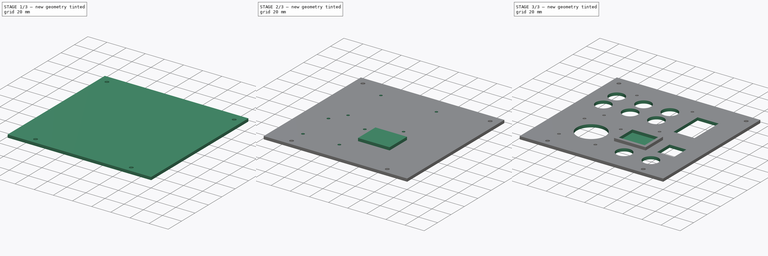
[diagram: build sequence overview — one tinted view per stage of 3, left to right]
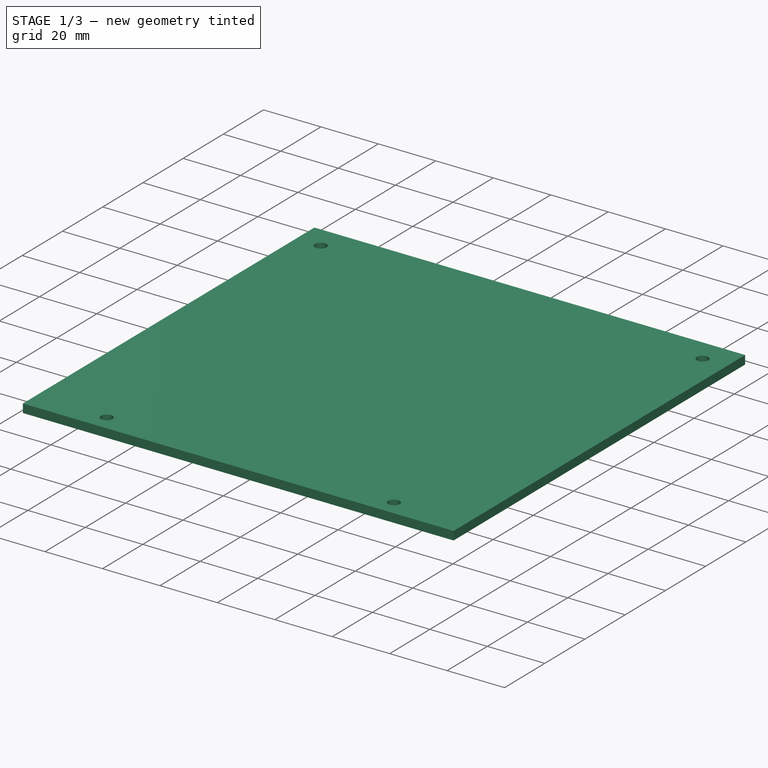
[diagram: stage 1 of 3 — iso view after this stage's code; geometry added in this stage tinted green]
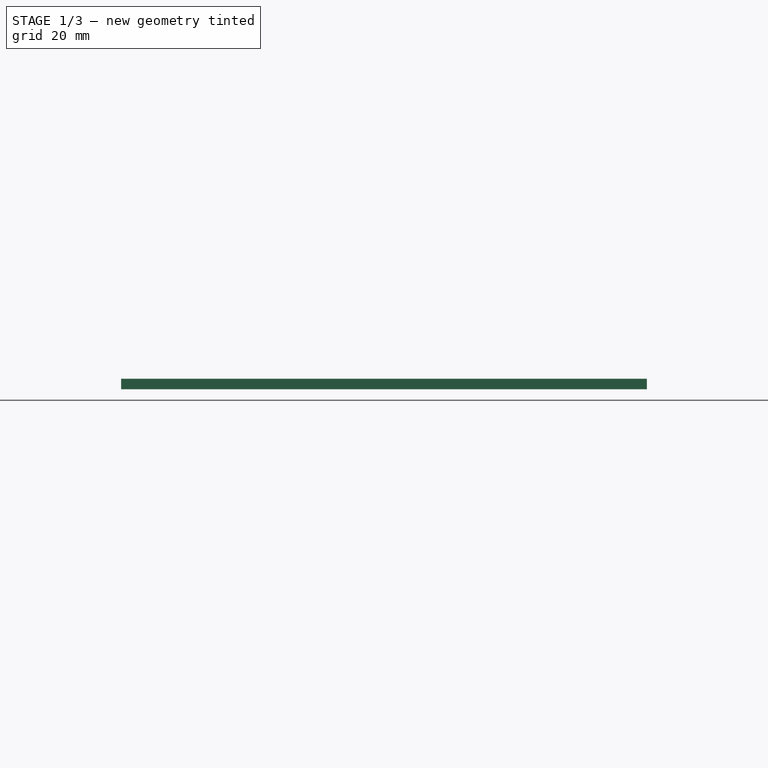
[diagram: stage 1 of 3 — front view after this stage's code; geometry added in this stage tinted green]
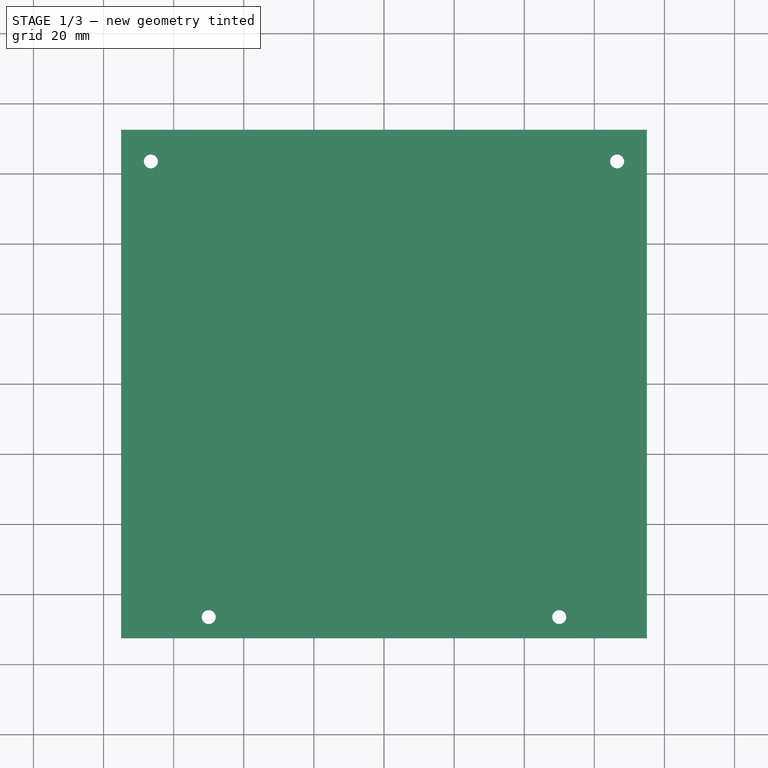
[diagram: stage 1 of 3 — top view after this stage's code; geometry added in this stage tinted green]
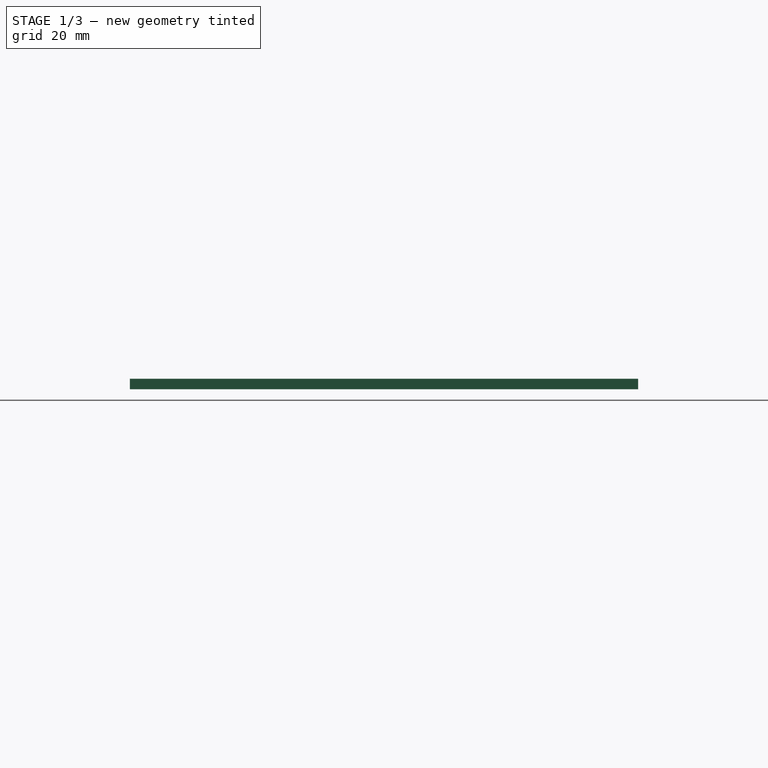
[diagram: stage 1 of 3 — right view after this stage's code; geometry added in this stage tinted green]
FCSTD DOCUMENT  (FreeCAD 0.18R4 (GitTag))
Label: RaspberryPiBase
License: All rights reserved
LicenseURL: http://en.wikipedia.org/wiki/All_rights_reserved
objects: Sketcher::SketchObject×7, PartDesign::Pocket×5, PartDesign::Pad×2, PartDesign::Body×1
note: 22 computed .brp shape members not serialized (recipe doc carries the construction recipe); baked Part::Feature solids carry a one-line shape summary decoded from their .brp

FEATURE [Sketcher::SketchObject] Sketch  label="Outline"
  MapMode = 5
  Support = -> [XY_Plane]
  sketch-geometry (4):
    g0: LineSegment StartX=-75 StartY=72.5 StartZ=0 EndX=75 EndY=72.5 EndZ=0
    g1: LineSegment StartX=75 StartY=72.5 StartZ=0 EndX=75 EndY=-72.5 EndZ=0
    g2: LineSegment StartX=75 StartY=-72.5 StartZ=0 EndX=-75 EndY=-72.5 EndZ=0
    g3: LineSegment StartX=-75 StartY=-72.5 StartZ=0 EndX=-75 EndY=72.5 EndZ=0
  constraints (10):
    c: Coincident(g0,g1)
    c: Coincident(g1,g2)
    c: Coincident(g2,g3)
    c: Coincident(g3,g0)
    c: Horizontal(g2)
    c: Vertical(g3)
    c: Symmetric(g0,g0,g-2)
    c: Symmetric(g0,g1,g-1)
    c: DistanceY(g1,g1) = 145
    c: DistanceX(g0,g0) = 150
FEATURE [PartDesign::Pad] Pad
  Length = 3
  Length2 = 100
  Profile = -> Sketch
  Type = 0
FEATURE [Sketcher::SketchObject] Sketch001  label="mountholes"
  ExternalGeometry = -> [Pad]
  MapMode = 5
  Placement = pos=(0,0,3) rot=(0,0,1;0rad)
  Support = -> [Pad]
  sketch-geometry (4):
    g0: Circle CenterX=-50 CenterY=-66.5 CenterZ=0 NormalX=0 NormalY=0 NormalZ=1 AngleXU=0 Radius=2
    g1: Circle CenterX=50 CenterY=-66.5 CenterZ=0 NormalX=0 NormalY=0 NormalZ=1 AngleXU=0 Radius=2
    g2: Circle CenterX=-66.5 CenterY=63.5 CenterZ=0 NormalX=0 NormalY=0 NormalZ=1 AngleXU=0 Radius=2
    g3: Circle CenterX=66.5 CenterY=63.5 CenterZ=0 NormalX=0 NormalY=0 NormalZ=1 AngleXU=0 Radius=2
  constraints (10):
    c: Radius(g1) = 2
    c: Radius(g0) = 2
    c: DistanceX(g0,g1) = 100
    c: Symmetric(g0,g1,g-2)
    c: Radius(g2) = 2
    c: Radius(g3) = 2
    c: DistanceX(g2,g3) = 133
    c: Symmetric(g2,g3,g-2)
    c: DistanceY(g1,g3) = 130
    c: DistanceY(g3,g-3) = 9
FEATURE [PartDesign::Pocket] Pocket
  BaseFeature = -> Pad
  Length = 5
  Length2 = 100
  Profile = -> Sketch001
  Type = 0
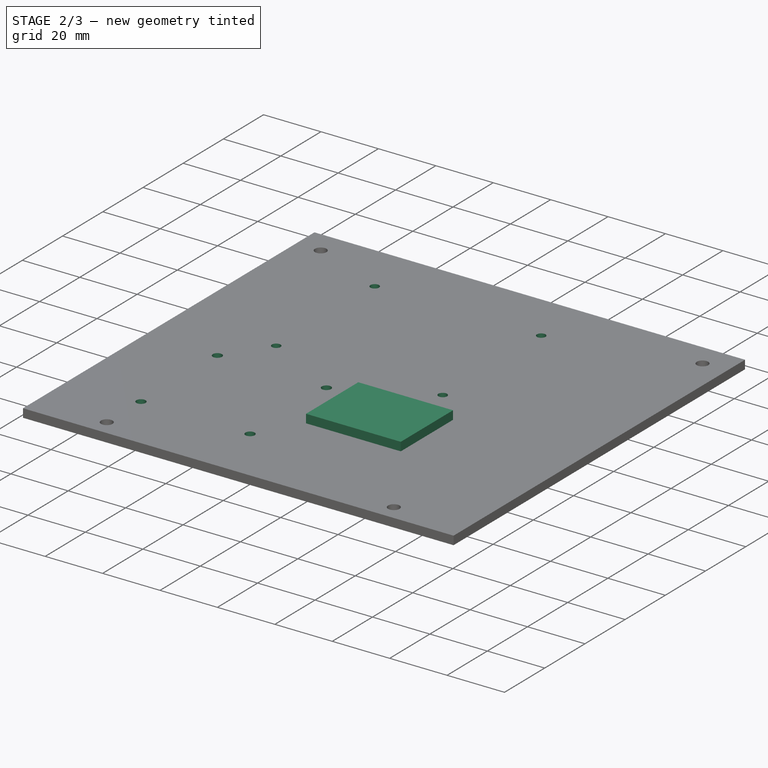
[diagram: stage 2 of 3 — iso view after this stage's code; geometry added in this stage tinted green]
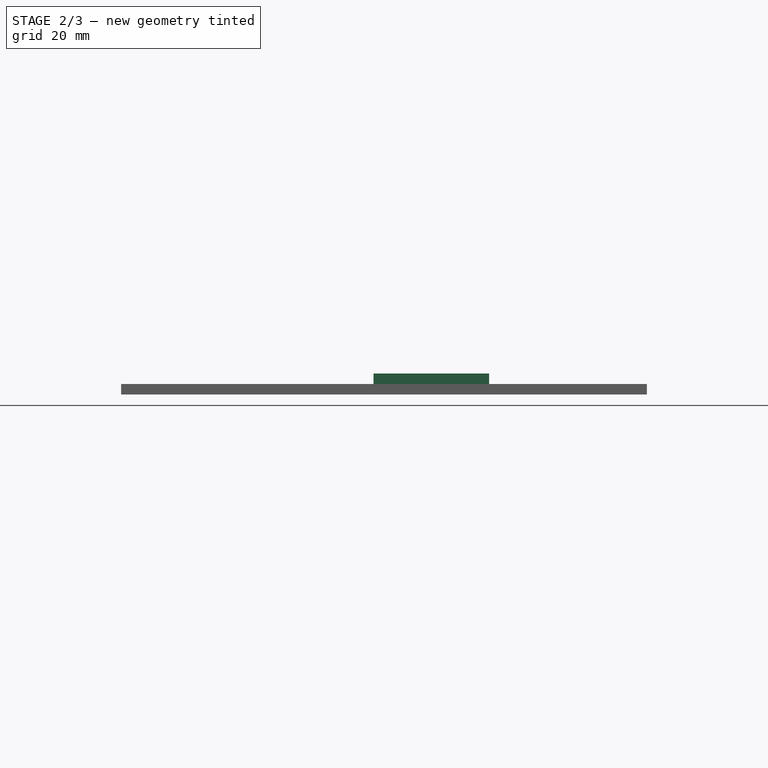
[diagram: stage 2 of 3 — front view after this stage's code; geometry added in this stage tinted green]
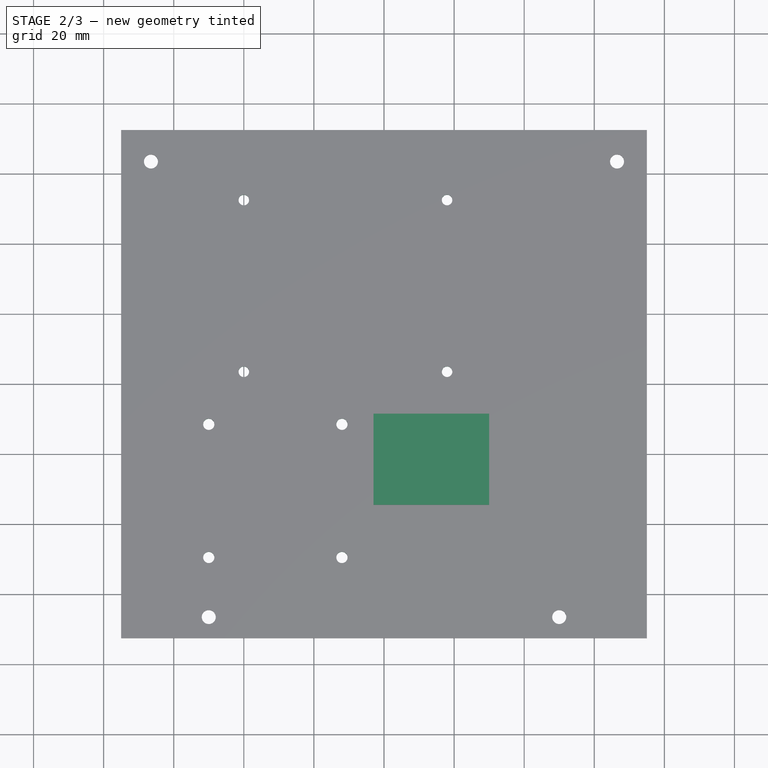
[diagram: stage 2 of 3 — top view after this stage's code; geometry added in this stage tinted green]
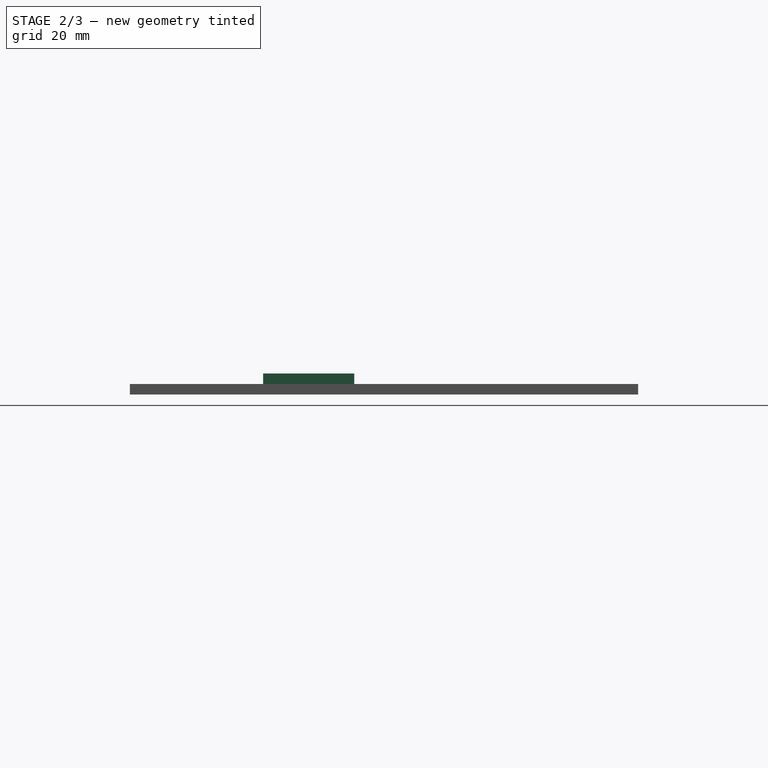
[diagram: stage 2 of 3 — right view after this stage's code; geometry added in this stage tinted green]
FEATURE [Sketcher::SketchObject] Sketch002  label="Raspberry pi"
  ExternalGeometry = -> [Pocket]
  MapMode = 5
  Placement = pos=(0,0,3) rot=(0,0,1;0rad)
  Support = -> [Pocket]
  sketch-geometry (4):
    g0: Circle CenterX=-40 CenterY=52.5 CenterZ=0 NormalX=0 NormalY=0 NormalZ=1 AngleXU=0 Radius=1.5
    g1: Circle CenterX=18 CenterY=52.5 CenterZ=0 NormalX=0 NormalY=0 NormalZ=1 AngleXU=0 Radius=1.5
    g2: Circle CenterX=-40 CenterY=3.5 CenterZ=0 NormalX=0 NormalY=0 NormalZ=1 AngleXU=0 Radius=1.5
    g3: Circle CenterX=18 CenterY=3.5 CenterZ=0 NormalX=0 NormalY=0 NormalZ=1 AngleXU=0 Radius=1.5
  constraints (12):
    c: Radius(g0) = 1.5
    c: Radius(g1) = 1.5
    c: Radius(g2) = 1.5
    c: Radius(g3) = 1.5
    c: DistanceX(g-3,g0) = 35
    c: DistanceY(g0,g-3) = 20
    c: DistanceX(g0,g1) = 58
    c: DistanceY(g1,g0) = 0
    c: DistanceY(g2,g0) = 49
    c: DistanceX(g2,g0) = 0
    c: DistanceY(g2,g3) = 0
    c: DistanceX(g3,g1) = 0
FEATURE [PartDesign::Pocket] Pocket001
  BaseFeature = -> Pocket
  Length = 5
  Length2 = 100
  Profile = -> Sketch002
  Type = 1
FEATURE [Sketcher::SketchObject] Sketch003  label="motorcontroller"
  ExternalGeometry = -> [Pocket001]
  MapMode = 5
  Placement = pos=(0,0,3) rot=(0,0,1;0rad)
  Support = -> [Pocket001]
  sketch-geometry (4):
    g0: Circle CenterX=-50 CenterY=-11.5 CenterZ=0 NormalX=0 NormalY=0 NormalZ=1 AngleXU=0 Radius=1.6
    g1: Circle CenterX=-12 CenterY=-11.5 CenterZ=0 NormalX=0 NormalY=0 NormalZ=1 AngleXU=0 Radius=1.6
    g2: Circle CenterX=-50 CenterY=-49.5 CenterZ=0 NormalX=0 NormalY=0 NormalZ=1 AngleXU=0 Radius=1.6
    g3: Circle CenterX=-12 CenterY=-49.5 CenterZ=0 NormalX=0 NormalY=0 NormalZ=1 AngleXU=0 Radius=1.6
  constraints (12):
    c: Radius(g0) = 1.6
    c: Radius(g1) = 1.6
    c: Radius(g2) = 1.6
    c: Radius(g3) = 1.6
    c: DistanceX(g0,g-3) = 10
    c: DistanceY(g0,g-3) = 15
    c: DistanceX(g0,g1) = 38
    c: DistanceY(g1,g0) = 0
    c: DistanceX(g2,g0) = 0
    c: DistanceY(g2,g0) = 38
    c: DistanceY(g2,g3) = 0
    c: DistanceX(g3,g1) = 0
FEATURE [PartDesign::Pocket] Pocket002
  BaseFeature = -> Pocket001
  Length = 5
  Length2 = 100
  Profile = -> Sketch003
  Type = 1
FEATURE [Sketcher::SketchObject] Sketch004
  ExternalGeometry = -> [Pocket002]
  MapMode = 5
  Placement = pos=(0,0,3) rot=(0,0,1;0rad)
  Support = -> [Pocket002]
  sketch-geometry (4):
    g0: LineSegment StartX=-3 StartY=-8.5 StartZ=0 EndX=30 EndY=-8.5 EndZ=0
    g1: LineSegment StartX=30 StartY=-8.5 StartZ=0 EndX=30 EndY=-34.5 EndZ=0
    g2: LineSegment StartX=30 StartY=-34.5 StartZ=0 EndX=-3 EndY=-34.5 EndZ=0
    g3: LineSegment StartX=-3 StartY=-34.5 StartZ=0 EndX=-3 EndY=-8.5 EndZ=0
  constraints (12):
    c: Coincident(g0,g1)
    c: Coincident(g1,g2)
    c: Coincident(g2,g3)
    c: Coincident(g3,g0)
    c: Horizontal(g0)
    c: Horizontal(g2)
    c: Vertical(g1)
    c: Vertical(g3)
    c: DistanceY(g0,g-4) = -3
    c: DistanceY(g3,g3) = 26
    c: DistanceX(g0,g0) = 33
    c: DistanceX(g-3,g0) = 12
FEATURE [PartDesign::Pad] Pad001  label="raise-power"
  BaseFeature = -> Pocket002
  Length = 3
  Length2 = 100
  Profile = -> Sketch004
  Type = 0
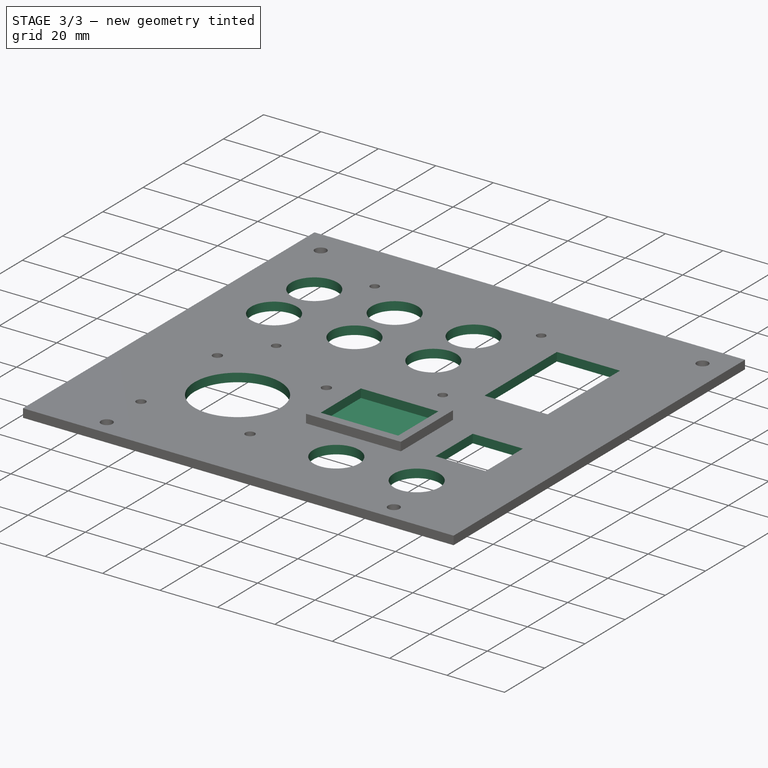
[diagram: stage 3 of 3 — iso view after this stage's code; geometry added in this stage tinted green]
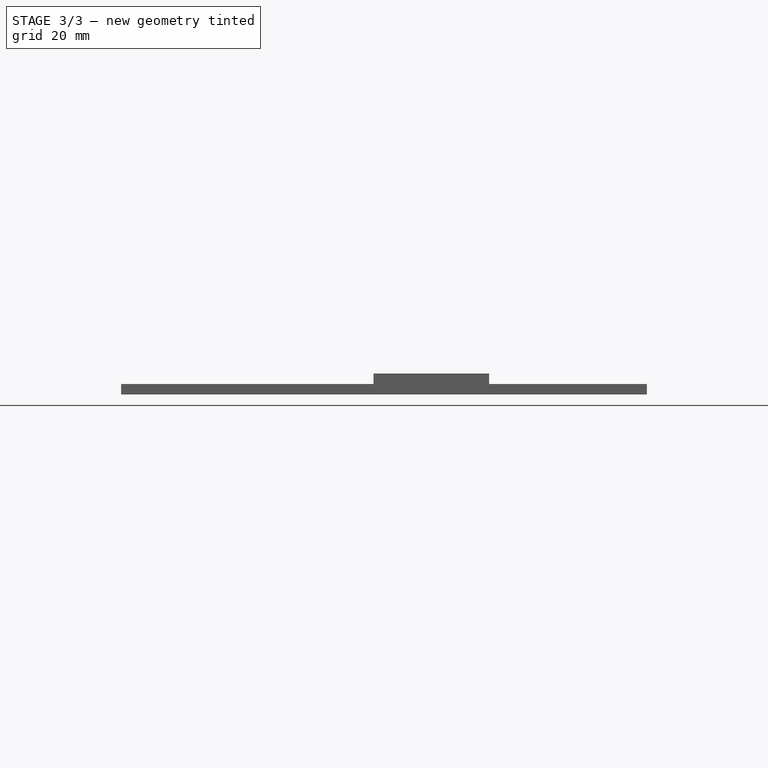
[diagram: stage 3 of 3 — front view after this stage's code; geometry added in this stage tinted green]
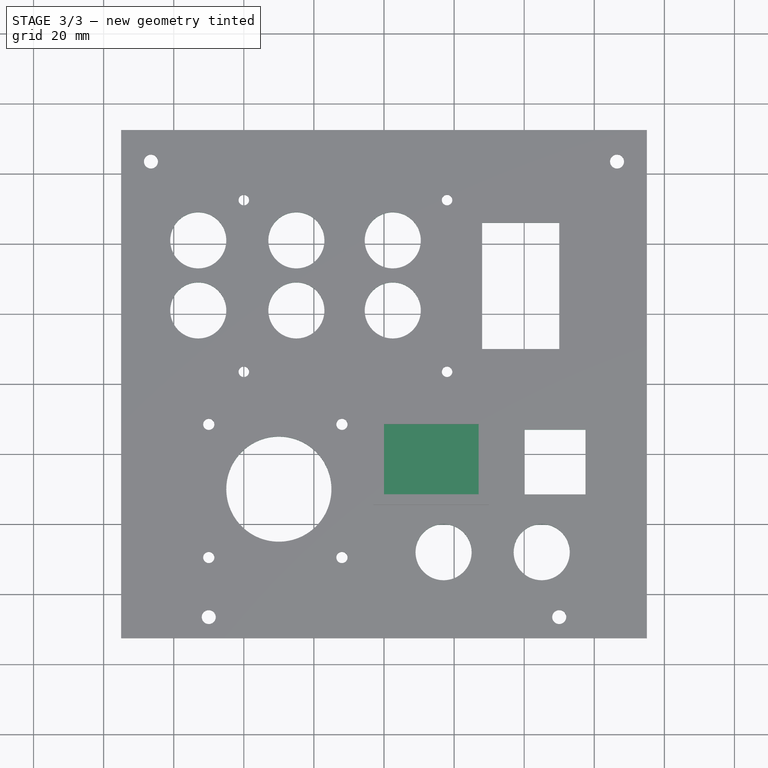
[diagram: stage 3 of 3 — top view after this stage's code; geometry added in this stage tinted green]
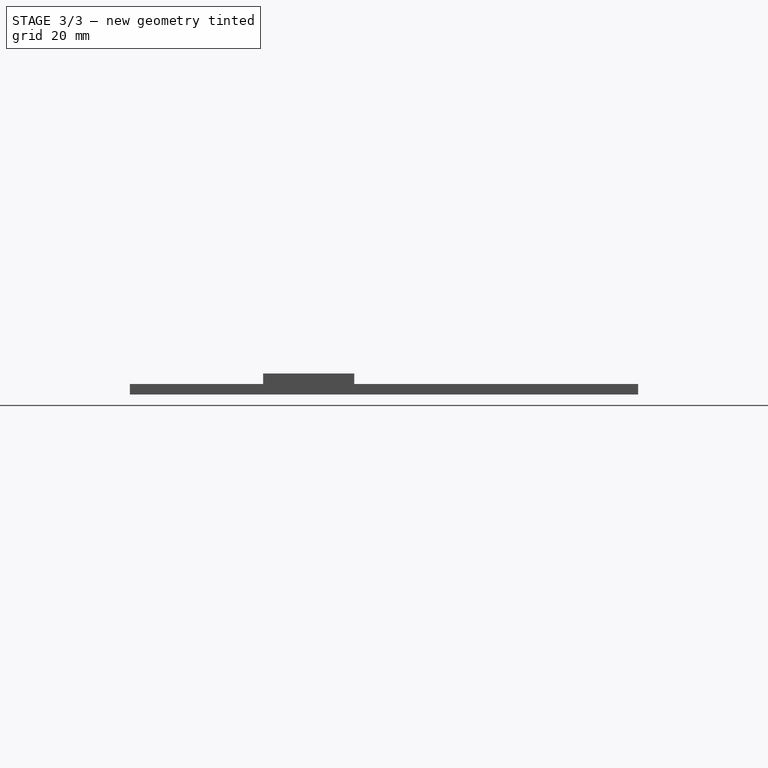
[diagram: stage 3 of 3 — right view after this stage's code; geometry added in this stage tinted green]
FEATURE [Sketcher::SketchObject] Sketch005
  ExternalGeometry = -> [Pad001]
  MapMode = 5
  Placement = pos=(0,0,6) rot=(0,0,1;0rad)
  Support = -> [Pad001]
  sketch-geometry (4):
    g0: LineSegment StartX=3.6e-15 StartY=-11.5 StartZ=0 EndX=27 EndY=-11.5 EndZ=0
    g1: LineSegment StartX=27 StartY=-11.5 StartZ=0 EndX=27 EndY=-31.5 EndZ=0
    g2: LineSegment StartX=27 StartY=-31.5 StartZ=0 EndX=3.6e-15 EndY=-31.5 EndZ=0
    g3: LineSegment StartX=3.6e-15 StartY=-31.5 StartZ=0 EndX=3.6e-15 EndY=-11.5 EndZ=0
  constraints (12):
    c: Coincident(g0,g1)
    c: Coincident(g1,g2)
    c: Coincident(g2,g3)
    c: Coincident(g3,g0)
    c: Horizontal(g0)
    c: Horizontal(g2)
    c: Vertical(g1)
    c: Vertical(g3)
    c: DistanceX(g0,g-4) = 3
    c: DistanceY(g0,g-4) = 3
    c: DistanceX(g-3,g0) = 3
    c: DistanceY(g-4,g1) = 3
FEATURE [PartDesign::Pocket] Pocket003  label="lower power"
  BaseFeature = -> Pad001
  Length = 3
  Length2 = 100
  Profile = -> Sketch005
  Type = 0
FEATURE [Sketcher::SketchObject] Sketch006
  MapMode = 5
  Placement = pos=(0,0,3) rot=(0,0,1;0rad)
  Support = -> [Pocket003]
  sketch-geometry (17):
    g0: Circle CenterX=-25 CenterY=41 CenterZ=0 NormalX=0 NormalY=0 NormalZ=1 AngleXU=0 Radius=8
    g1: Circle CenterX=2.5 CenterY=41 CenterZ=0 NormalX=0 NormalY=0 NormalZ=1 AngleXU=0 Radius=8
    g2: Circle CenterX=-25 CenterY=21 CenterZ=0 NormalX=0 NormalY=0 NormalZ=1 AngleXU=0 Radius=8
    g3: Circle CenterX=2.5 CenterY=21 CenterZ=0 NormalX=0 NormalY=0 NormalZ=1 AngleXU=0 Radius=8
    g4: LineSegment StartX=28 StartY=46 StartZ=0 EndX=50 EndY=46 EndZ=0
    g5: LineSegment StartX=50 StartY=46 StartZ=0 EndX=50 EndY=10 EndZ=0
    g6: LineSegment StartX=50 StartY=10 StartZ=0 EndX=28 EndY=10 EndZ=0
    g7: LineSegment StartX=28 StartY=10 StartZ=0 EndX=28 EndY=46 EndZ=0
    g8: LineSegment StartX=40 StartY=-13 StartZ=0 EndX=57.5 EndY=-13 EndZ=0
    g9: LineSegment StartX=57.5 StartY=-13 StartZ=0 EndX=57.5 EndY=-31.5 EndZ=0
    g10: LineSegment StartX=57.5 StartY=-31.5 StartZ=0 EndX=40 EndY=-31.5 EndZ=0
    g11: LineSegment StartX=40 StartY=-31.5 StartZ=0 EndX=40 EndY=-13 EndZ=0
    g12: Circle CenterX=-30 CenterY=-30 CenterZ=0 NormalX=0 NormalY=0 NormalZ=1 AngleXU=0 Radius=15
    g13: Circle CenterX=17 CenterY=-48 CenterZ=0 NormalX=0 NormalY=0 NormalZ=1 AngleXU=0 Radius=8
    g14: Circle CenterX=45 CenterY=-48 CenterZ=0 NormalX=0 NormalY=0 NormalZ=1 AngleXU=0 Radius=8
    g15: Circle CenterX=-53 CenterY=41 CenterZ=0 NormalX=0 NormalY=0 NormalZ=1 AngleXU=0 Radius=8
    g16: Circle CenterX=-53 CenterY=21 CenterZ=0 NormalX=0 NormalY=0 NormalZ=1 AngleXU=0 Radius=8
  constraints (51):
    c: Coincident(g4,g5)
    c: Coincident(g5,g6)
    c: Coincident(g6,g7)
    c: Coincident(g7,g4)
    c: Horizontal(g4)
    c: Horizontal(g6)
    c: Vertical(g5)
    c: Vertical(g7)
    c: Coincident(g8,g9)
    c: Coincident(g9,g10)
    c: Coincident(g10,g11)
    c: Coincident(g11,g8)
    c: Horizontal(g8)
    c: Horizontal(g10)
    c: Vertical(g9)
    c: Vertical(g11)
    c: Radius(g3) = 8
    c: Radius(g2) = 8
    c: Radius(g0) = 8
    c: Radius(g1) = 8
    c: DistanceX(g3) = 2.5
    c: DistanceY(g3) = 21
    c: DistanceX(g1,g3) = 0
    c: DistanceY(g1) = 41
    c: DistanceY(g3,g2) = 0
    c: DistanceY(g1,g0) = 0
    c: DistanceX(g2,g0) = 0
    c: DistanceX(g2) = -25
    c: Radius(g15) = 8
    c: Radius(g16) = 8
    c: DistanceX(g16,g15) = 0
    c: DistanceY(g16,g2) = 0
    c: DistanceY(g0,g15) = 0
    c: DistanceX(g16) = -53
    c: DistanceY(g6) = 10
    c: DistanceY(g7,g7) = 36
    c: DistanceX(g6,g6) = 22
    c: DistanceX(g6) = 28
    c: Radius(g12) = 15
    c: DistanceY(g12) = -30
    c: DistanceX(g12) = -30
    c: Radius(g13) = 8
    c: Radius(g14) = 8
    c: DistanceY(g13,g14) = 0
    c: DistanceY(g13) = -48
    c: DistanceX(g13) = 17
    c: DistanceX(g13,g14) = 28
    c: DistanceY(g8) = -13
    c: DistanceX(g8) = 40
    c: DistanceX(g8,g8) = 17.5
    c: DistanceY(g9,g9) = 18.5
FEATURE [PartDesign::Pocket] Pocket004  label="holes"
  BaseFeature = -> Pocket003
  Length = 5
  Length2 = 100
  Profile = -> Sketch006
  Type = 1
FEATURE [PartDesign::Body] Body
  Group = -> [Sketch,Pad,Sketch001,Pocket,Sketch002,Pocket001,Sketch003,Pocket002,Sketch004,Pad001,Sketch005,Pocket003,Sketch006,Pocket004]
  Origin = -> Origin
  Tip = -> Pocket004
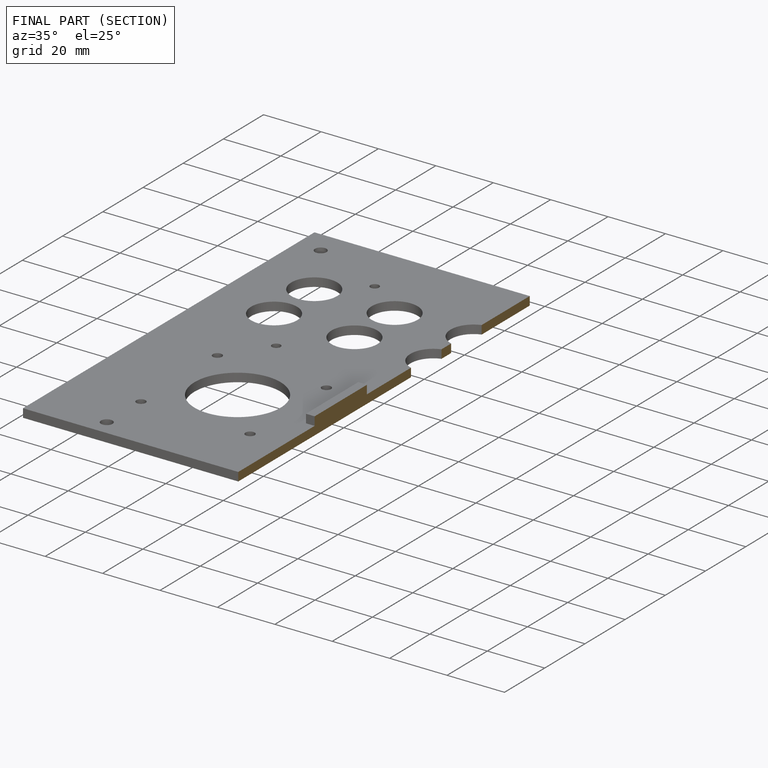
[diagram: finished part — half-section view (interior)]
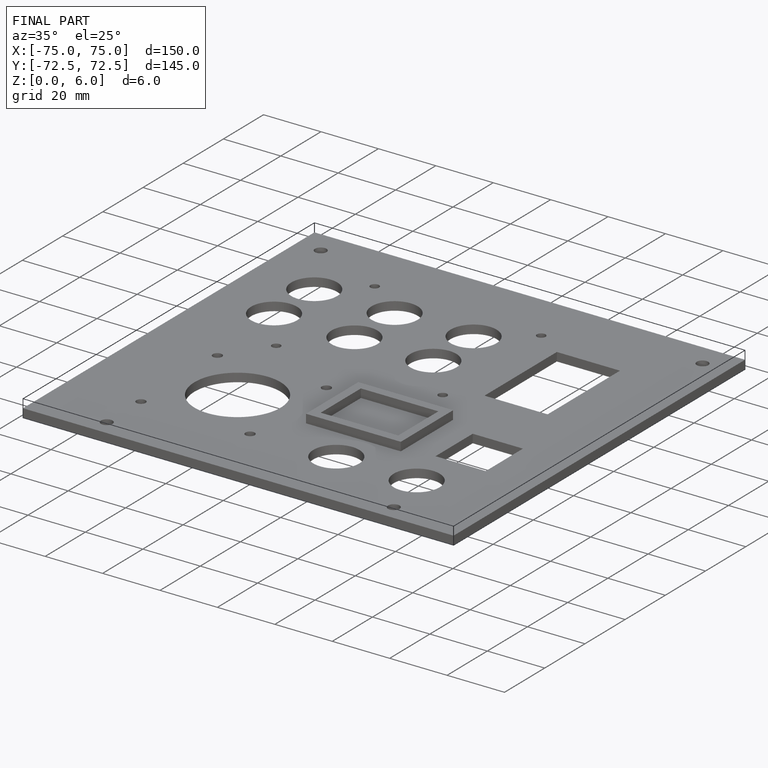
[diagram: finished part — iso view with bounding-box wireframe]
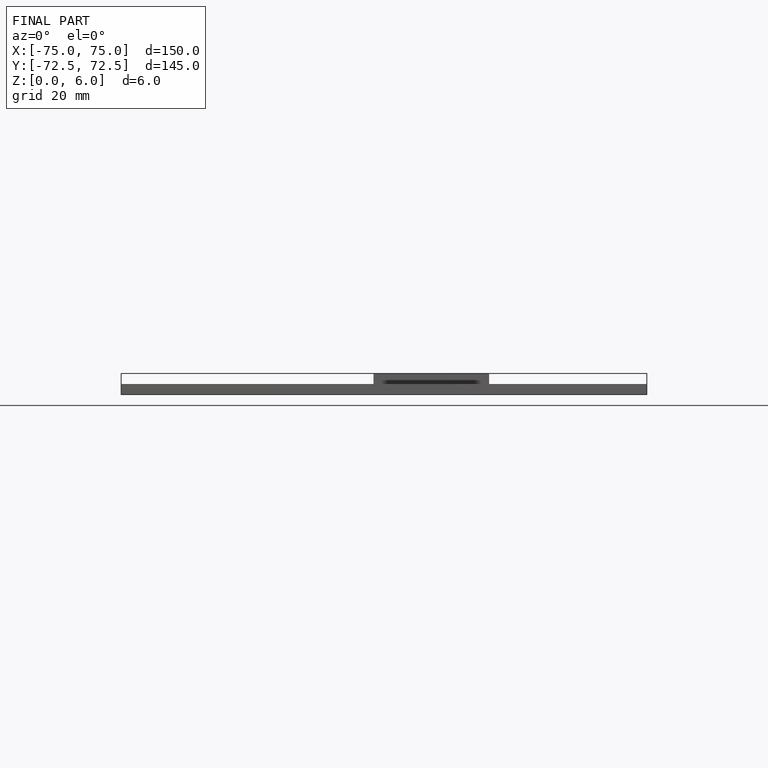
[diagram: finished part — front view with bounding-box wireframe]
